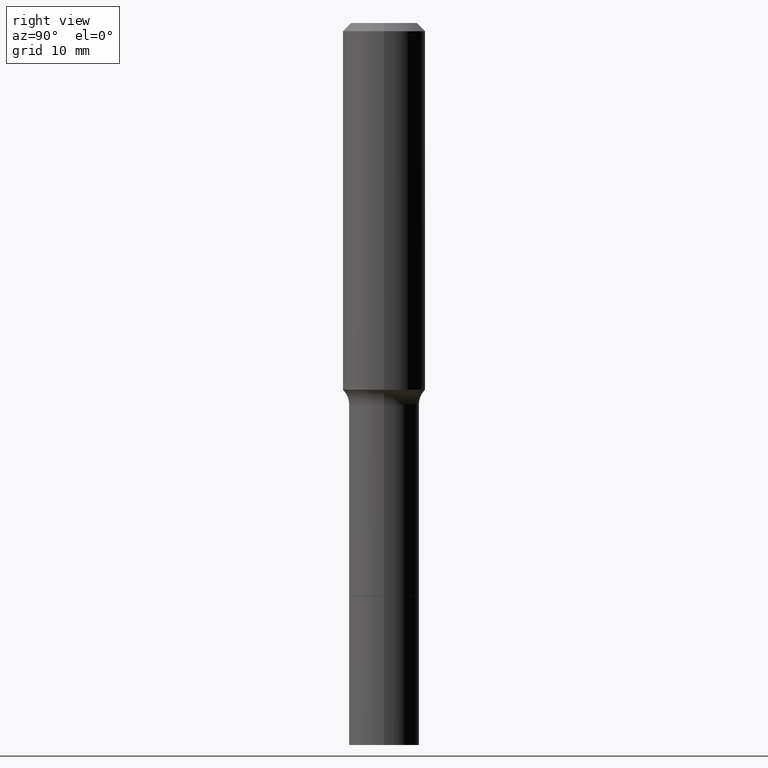
[diagram: clean part render]
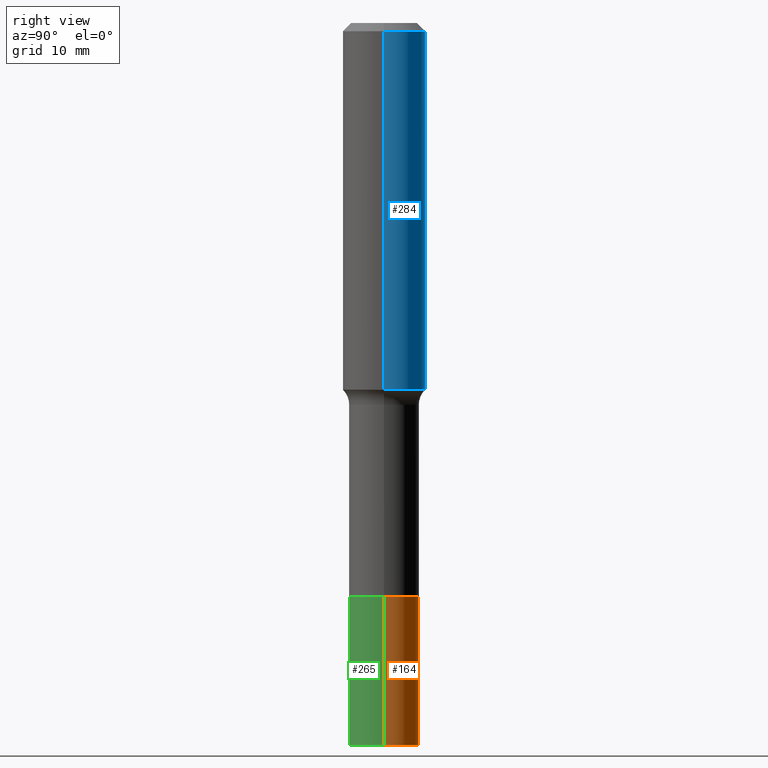
[diagram: same view with three faces highlighted in distinct colors, each labeled with its STEP entity id]
A machine part, right view with three faces highlighted in distinct colors.
Their STEP definitions:

[orange] entity #164 — the highlighted cylindrical surface (edge-blend (fillet) strip) has radius 3.3998 mm, axis along (-0, 0, 1).
#33 = AXIS2_PLACEMENT_3D ( 'NONE', #144, #430, #221 ) ;
#41 = ORIENTED_EDGE ( 'NONE', *, *, #314, .T. ) ;
#58 = AXIS2_PLACEMENT_3D ( 'NONE', #511, #227, #92 ) ;
#87 = ORIENTED_EDGE ( 'NONE', *, *, #152, .F. ) ;
#92 = DIRECTION ( 'NONE',  ( 1.000000000000000000, -6.982962677686263555E-15, 0.000000000000000000 ) ) ;
#94 = CIRCLE ( 'NONE', #33, 0.1338499999999999968 ) ;
#96 = FACE_OUTER_BOUND ( 'NONE', #206, .T. ) ;
#104 = CARTESIAN_POINT ( 'NONE',  ( -0.1338499999999999968, -7.681277010340897362E-15, -2.188899999999999846 ) ) ;
#115 = VERTEX_POINT ( 'NONE', #327 ) ;
#128 = CARTESIAN_POINT ( 'NONE',  ( 6.739467482965618232E-29, -9.622173421717824390E-15, -2.755900000000000016 ) ) ;
#133 = VERTEX_POINT ( 'NONE', #502 ) ;
#137 = VECTOR ( 'NONE', #492, 39.37007874015748143 ) ;
#144 = CARTESIAN_POINT ( 'NONE',  ( 5.352886669858645925E-29, -7.642503502593762035E-15, -2.188899999999999846 ) ) ;
#152 = EDGE_CURVE ( 'NONE', #133, #115, #456, .T. ) ;
#164 = ADVANCED_FACE ( 'NONE', ( #96 ), #333, .T. ) ;
#193 = AXIS2_PLACEMENT_3D ( 'NONE', #128, #366, #251 ) ;
#195 = CIRCLE ( 'NONE', #193, 0.1338500000000001633 ) ;
#201 = ORIENTED_EDGE ( 'NONE', *, *, #381, .T. ) ;
#202 = CARTESIAN_POINT ( 'NONE',  ( -0.1338500000000000800, -6.691442050778866184E-15, -2.188899999999999846 ) ) ;
#206 = EDGE_LOOP ( 'NONE', ( #201, #41, #254, #87 ) ) ;
#221 = DIRECTION ( 'NONE',  ( 1.000000000000000000, -6.982962677686267499E-15, 0.000000000000000000 ) ) ;
#227 = DIRECTION ( 'NONE',  ( -2.445468806185136597E-29, 3.491481338843145583E-15, 1.000000000000000000 ) ) ;
#251 = DIRECTION ( 'NONE',  ( 1.000000000000000000, -6.982962677686266711E-15, 0.000000000000000000 ) ) ;
#254 = ORIENTED_EDGE ( 'NONE', *, *, #273, .F. ) ;
#273 = EDGE_CURVE ( 'NONE', #115, #371, #94, .T. ) ;
#292 = CARTESIAN_POINT ( 'NONE',  ( 0.1338500000000000800, -8.577173057002068967E-15, -2.188899999999999846 ) ) ;
#313 = VERTEX_POINT ( 'NONE', #329 ) ;
#314 = EDGE_CURVE ( 'NONE', #313, #371, #495, .T. ) ;
#327 = CARTESIAN_POINT ( 'NONE',  ( 0.1338499999999999968, -8.577173057002068967E-15, -2.188899999999999846 ) ) ;
#329 = CARTESIAN_POINT ( 'NONE',  ( -0.1338500000000001633, -7.681277010340897362E-15, -2.755900000000000016 ) ) ;
#333 = CYLINDRICAL_SURFACE ( 'NONE', #58, 0.1338500000000000800 ) ;
#366 = DIRECTION ( 'NONE',  ( -2.445468806185136597E-29, 3.491481338843145583E-15, 1.000000000000000000 ) ) ;
#371 = VERTEX_POINT ( 'NONE', #104 ) ;
#381 = EDGE_CURVE ( 'NONE', #133, #313, #195, .T. ) ;
#427 = DIRECTION ( 'NONE',  ( -2.445468806185136877E-29, 3.491481338843145188E-15, 1.000000000000000000 ) ) ;
#430 = DIRECTION ( 'NONE',  ( -2.445468806185136597E-29, 3.491481338843145583E-15, 1.000000000000000000 ) ) ;
#456 = LINE ( 'NONE', #292, #489 ) ;
#489 = VECTOR ( 'NONE', #427, 39.37007874015748143 ) ;
#492 = DIRECTION ( 'NONE',  ( -2.445468806185136877E-29, 3.491481338843145188E-15, 1.000000000000000000 ) ) ;
#495 = LINE ( 'NONE', #202, #137 ) ;
#502 = CARTESIAN_POINT ( 'NONE',  ( 0.1338500000000001633, -1.055684297612613290E-14, -2.755900000000000016 ) ) ;
#511 = CARTESIAN_POINT ( 'NONE',  ( 5.352886669858645925E-29, -7.642503502593762035E-15, -2.188899999999999846 ) ) ;

[blue] entity #284 — the highlighted cylindrical surface (partial cylindrical patch) has radius 4.0005 mm, axis along (-0, 0, 1).
#5 = CYLINDRICAL_SURFACE ( 'NONE', #141, 0.1575000000000000844 ) ;
#29 = DIRECTION ( 'NONE',  ( -2.445468806185136597E-29, 3.491481338843145583E-15, 1.000000000000000000 ) ) ;
#84 = LINE ( 'NONE', #243, #337 ) ;
#103 = DIRECTION ( 'NONE',  ( -2.445468806185136597E-29, 3.491481338843145583E-15, 1.000000000000000000 ) ) ;
#123 = DIRECTION ( 'NONE',  ( 1.000000000000000000, -6.982962677686267499E-15, 0.000000000000000000 ) ) ;
#124 = EDGE_CURVE ( 'NONE', #504, #396, #208, .T. ) ;
#130 = ORIENTED_EDGE ( 'NONE', *, *, #124, .F. ) ;
#140 = FACE_OUTER_BOUND ( 'NONE', #468, .T. ) ;
#141 = AXIS2_PLACEMENT_3D ( 'NONE', #189, #103, #347 ) ;
#153 = CIRCLE ( 'NONE', #167, 0.1575000000000001676 ) ;
#163 = ORIENTED_EDGE ( 'NONE', *, *, #437, .T. ) ;
#167 = AXIS2_PLACEMENT_3D ( 'NONE', #332, #246, #123 ) ;
#175 = DIRECTION ( 'NONE',  ( -2.445468806185136877E-29, 3.491481338843145188E-15, 1.000000000000000000 ) ) ;
#183 = DIRECTION ( 'NONE',  ( 1.000000000000000000, -6.982962677686265922E-15, 0.000000000000000000 ) ) ;
#189 = CARTESIAN_POINT ( 'NONE',  ( 0.000000000000000000, 0.000000000000000000, 0.000000000000000000 ) ) ;
#208 = CIRCLE ( 'NONE', #274, 0.1575000000000000011 ) ;
#211 = CARTESIAN_POINT ( 'NONE',  ( 0.1575000000000000844, -1.099816621735587677E-15, 7.679978421878603638E-30 ) ) ;
#225 = VERTEX_POINT ( 'NONE', #402 ) ;
#235 = CARTESIAN_POINT ( 'NONE',  ( 0.1575000000000000011, -1.209798283909146741E-15, -0.03150000000000020839 ) ) ;
#242 = ORIENTED_EDGE ( 'NONE', *, *, #470, .T. ) ;
#243 = CARTESIAN_POINT ( 'NONE',  ( -0.1575000000000000844, 1.119104808822158392E-15, -7.747322767151481189E-30 ) ) ;
#246 = DIRECTION ( 'NONE',  ( -2.445468806185136597E-29, 3.491481338843145583E-15, 1.000000000000000000 ) ) ;
#257 = VERTEX_POINT ( 'NONE', #301 ) ;
#274 = AXIS2_PLACEMENT_3D ( 'NONE', #421, #29, #183 ) ;
#284 = ADVANCED_FACE ( 'NONE', ( #140 ), #5, .T. ) ;
#290 = ORIENTED_EDGE ( 'NONE', *, *, #428, .F. ) ;
#301 = CARTESIAN_POINT ( 'NONE',  ( -0.1575000000000001676, -3.769058593978608942E-15, -1.400025641958720479 ) ) ;
#326 = CARTESIAN_POINT ( 'NONE',  ( -0.1575000000000000011, -1.379967723665005201E-15, -0.03150000000000020839 ) ) ;
#332 = CARTESIAN_POINT ( 'NONE',  ( 3.423719035269371111E-29, -4.888163402800768123E-15, -1.400025641958720479 ) ) ;
#337 = VECTOR ( 'NONE', #413, 39.37007874015748143 ) ;
#347 = DIRECTION ( 'NONE',  ( 1.000000000000000000, -6.982962677686267499E-15, 4.876176775795936353E-29 ) ) ;
#374 = LINE ( 'NONE', #211, #444 ) ;
#396 = VERTEX_POINT ( 'NONE', #326 ) ;
#402 = CARTESIAN_POINT ( 'NONE',  ( 0.1575000000000001676, -5.987980024536356393E-15, -1.400025641958720479 ) ) ;
#413 = DIRECTION ( 'NONE',  ( -2.445468806185136877E-29, 3.491481338843145188E-15, 1.000000000000000000 ) ) ;
#421 = CARTESIAN_POINT ( 'NONE',  ( 7.703226739483230474E-31, -1.099816621735598031E-16, -0.03150000000000020839 ) ) ;
#428 = EDGE_CURVE ( 'NONE', #225, #504, #374, .T. ) ;
#437 = EDGE_CURVE ( 'NONE', #225, #257, #153, .T. ) ;
#444 = VECTOR ( 'NONE', #175, 39.37007874015748143 ) ;
#468 = EDGE_LOOP ( 'NONE', ( #163, #242, #130, #290 ) ) ;
#470 = EDGE_CURVE ( 'NONE', #257, #396, #84, .T. ) ;
#504 = VERTEX_POINT ( 'NONE', #235 ) ;

[green] entity #265 — the highlighted cylindrical surface (edge-blend (fillet) strip) has radius 3.3998 mm, axis along (-0, 0, 1).
#23 = CARTESIAN_POINT ( 'NONE',  ( 6.739467482965618232E-29, -9.622173421717824390E-15, -2.755900000000000016 ) ) ;
#42 = CARTESIAN_POINT ( 'NONE',  ( 5.352886669858645925E-29, -7.642503502593762035E-15, -2.188899999999999846 ) ) ;
#47 = CIRCLE ( 'NONE', #336, 0.1338500000000001633 ) ;
#78 = CYLINDRICAL_SURFACE ( 'NONE', #399, 0.1338500000000000800 ) ;
#104 = CARTESIAN_POINT ( 'NONE',  ( -0.1338499999999999968, -7.681277010340897362E-15, -2.188899999999999846 ) ) ;
#115 = VERTEX_POINT ( 'NONE', #327 ) ;
#133 = VERTEX_POINT ( 'NONE', #502 ) ;
#137 = VECTOR ( 'NONE', #492, 39.37007874015748143 ) ;
#152 = EDGE_CURVE ( 'NONE', #133, #115, #456, .T. ) ;
#174 = DIRECTION ( 'NONE',  ( -2.445468806185136597E-29, 3.491481338843145583E-15, 1.000000000000000000 ) ) ;
#202 = CARTESIAN_POINT ( 'NONE',  ( -0.1338500000000000800, -6.691442050778866184E-15, -2.188899999999999846 ) ) ;
#213 = ORIENTED_EDGE ( 'NONE', *, *, #314, .F. ) ;
#241 = EDGE_CURVE ( 'NONE', #371, #115, #282, .T. ) ;
#259 = DIRECTION ( 'NONE',  ( -2.445468806185136597E-29, 3.491481338843145583E-15, 1.000000000000000000 ) ) ;
#265 = ADVANCED_FACE ( 'NONE', ( #387 ), #78, .T. ) ;
#282 = CIRCLE ( 'NONE', #316, 0.1338499999999999968 ) ;
#292 = CARTESIAN_POINT ( 'NONE',  ( 0.1338500000000000800, -8.577173057002068967E-15, -2.188899999999999846 ) ) ;
#313 = VERTEX_POINT ( 'NONE', #329 ) ;
#314 = EDGE_CURVE ( 'NONE', #313, #371, #495, .T. ) ;
#316 = AXIS2_PLACEMENT_3D ( 'NONE', #42, #259, #429 ) ;
#327 = CARTESIAN_POINT ( 'NONE',  ( 0.1338499999999999968, -8.577173057002068967E-15, -2.188899999999999846 ) ) ;
#329 = CARTESIAN_POINT ( 'NONE',  ( -0.1338500000000001633, -7.681277010340897362E-15, -2.755900000000000016 ) ) ;
#334 = ORIENTED_EDGE ( 'NONE', *, *, #350, .T. ) ;
#336 = AXIS2_PLACEMENT_3D ( 'NONE', #23, #174, #477 ) ;
#349 = ORIENTED_EDGE ( 'NONE', *, *, #241, .F. ) ;
#350 = EDGE_CURVE ( 'NONE', #313, #133, #47, .T. ) ;
#357 = EDGE_LOOP ( 'NONE', ( #213, #334, #483, #349 ) ) ;
#358 = DIRECTION ( 'NONE',  ( -2.445468806185136597E-29, 3.491481338843145583E-15, 1.000000000000000000 ) ) ;
#371 = VERTEX_POINT ( 'NONE', #104 ) ;
#387 = FACE_OUTER_BOUND ( 'NONE', #357, .T. ) ;
#399 = AXIS2_PLACEMENT_3D ( 'NONE', #473, #358, #478 ) ;
#427 = DIRECTION ( 'NONE',  ( -2.445468806185136877E-29, 3.491481338843145188E-15, 1.000000000000000000 ) ) ;
#429 = DIRECTION ( 'NONE',  ( 1.000000000000000000, -6.982962677686267499E-15, 0.000000000000000000 ) ) ;
#456 = LINE ( 'NONE', #292, #489 ) ;
#473 = CARTESIAN_POINT ( 'NONE',  ( 5.352886669858645925E-29, -7.642503502593762035E-15, -2.188899999999999846 ) ) ;
#477 = DIRECTION ( 'NONE',  ( 1.000000000000000000, -6.982962677686266711E-15, 0.000000000000000000 ) ) ;
#478 = DIRECTION ( 'NONE',  ( 1.000000000000000000, -6.982962677686263555E-15, 0.000000000000000000 ) ) ;
#483 = ORIENTED_EDGE ( 'NONE', *, *, #152, .T. ) ;
#489 = VECTOR ( 'NONE', #427, 39.37007874015748143 ) ;
#492 = DIRECTION ( 'NONE',  ( -2.445468806185136877E-29, 3.491481338843145188E-15, 1.000000000000000000 ) ) ;
#495 = LINE ( 'NONE', #202, #137 ) ;
#502 = CARTESIAN_POINT ( 'NONE',  ( 0.1338500000000001633, -1.055684297612613290E-14, -2.755900000000000016 ) ) ;